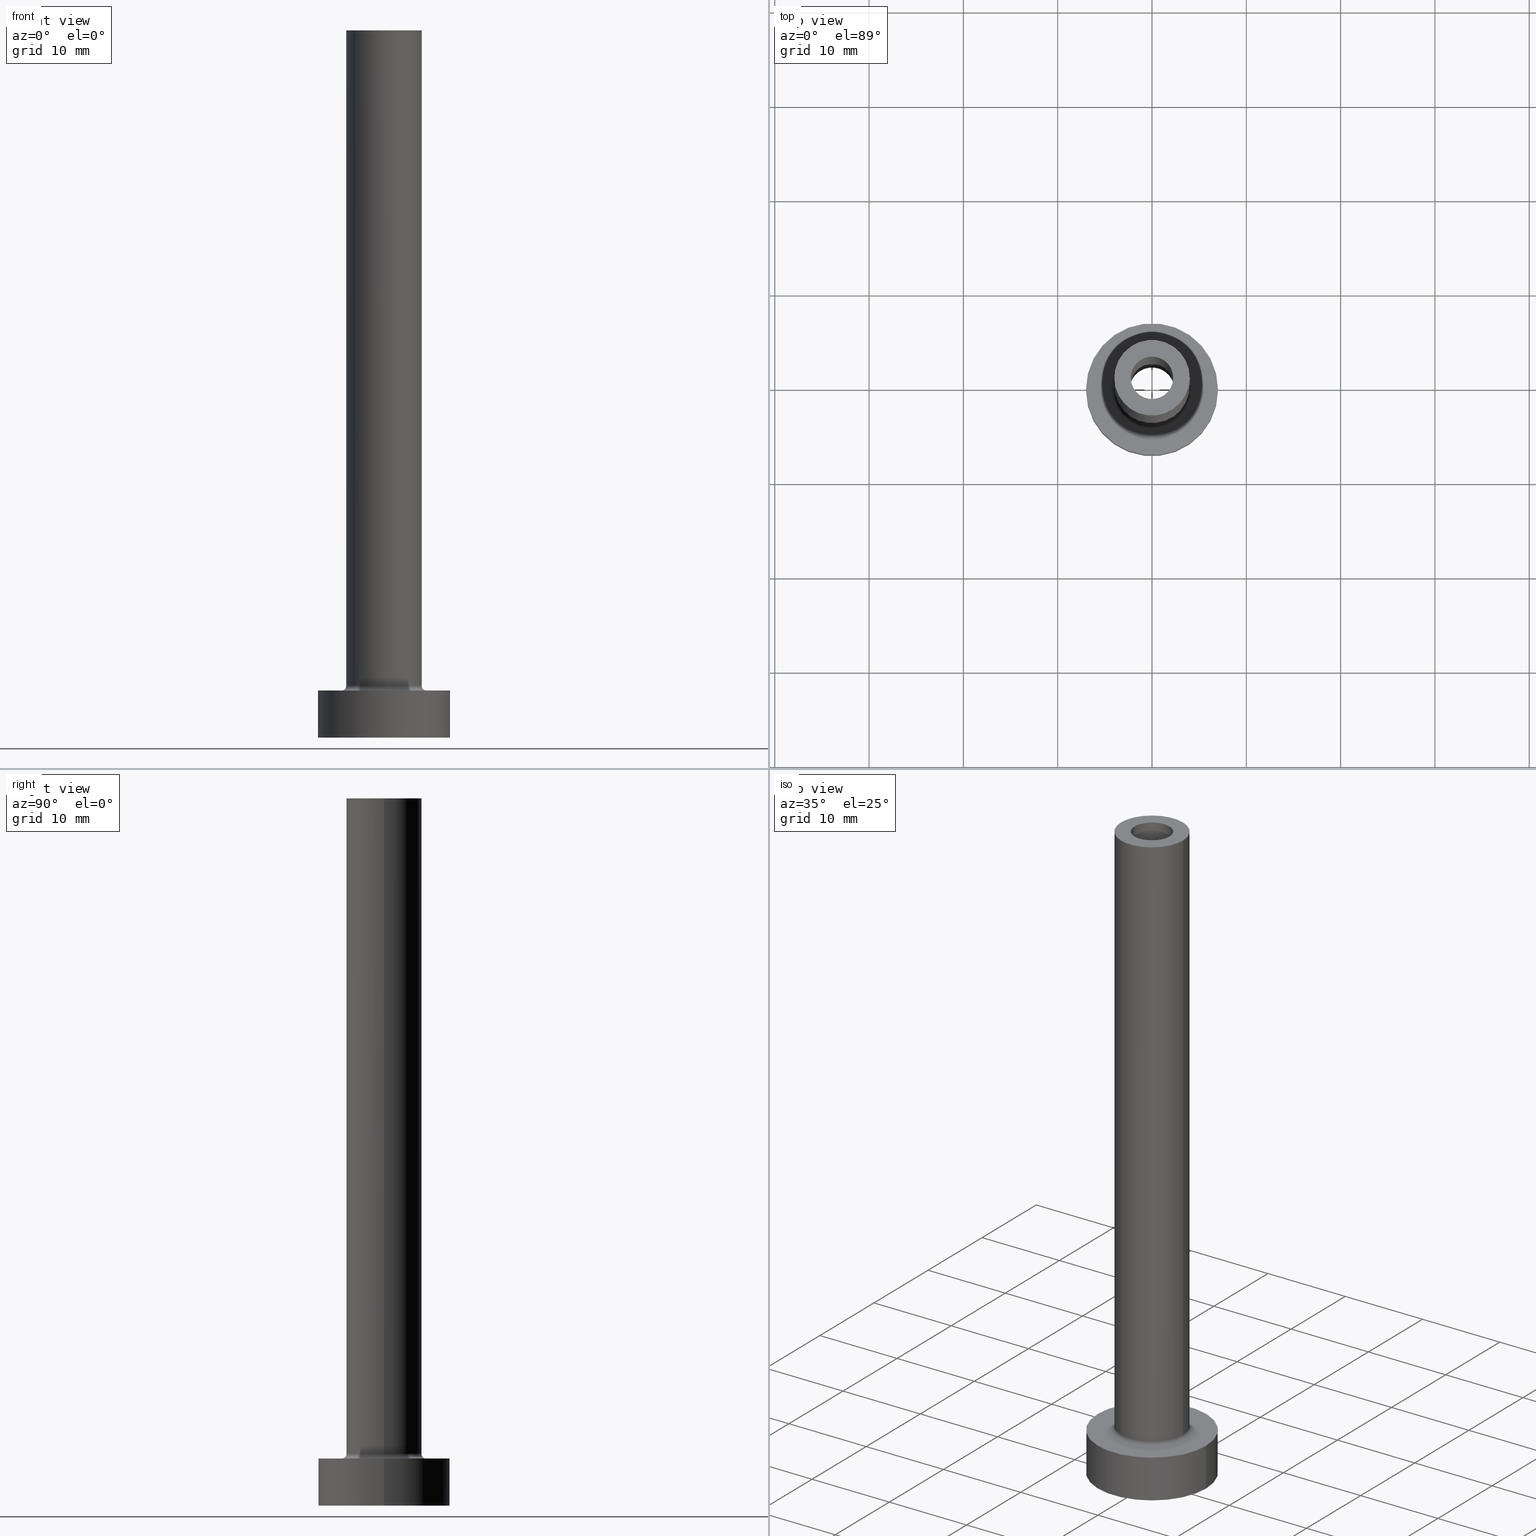
[diagram: canonical four-view strip — front | top / right | iso, engineering-drawing reading convention]
A machine part, canonical four-view strip (front | top / right | iso — engineering-drawing reading convention). The complete STEP part file that produces these views, byte-faithful:
ISO-10303-21;
HEADER;
FILE_DESCRIPTION (( 'STEP AP203' ),
    '1' );
FILE_NAME ('481a.STEP',
    '2023-02-13T11:06:10',
    ( '' ),
    ( '' ),
    'SwSTEP 2.0',
    'SolidWorks 2019',
    '' );
FILE_SCHEMA (( 'CONFIG_CONTROL_DESIGN' ));
ENDSEC;

DATA;
#1 = DIRECTION ( 'NONE',  ( 0.000000000000000000, 0.000000000000000000, 1.000000000000000000 ) ) ;
#2 = CARTESIAN_POINT ( 'NONE',  ( 0.000000000000000000, 0.000000000000000000, 30.00000000000001421 ) ) ;
#3 = EDGE_LOOP ( 'NONE', ( #32, #252 ) ) ;
#4 = CARTESIAN_POINT ( 'NONE',  ( 0.000000000000000000, 0.000000000000000000, 5.000000000000000000 ) ) ;
#5 = CARTESIAN_POINT ( 'NONE',  ( 0.000000000000000000, 0.000000000000000000, 5.500000000000005329 ) ) ;
#6 = CARTESIAN_POINT ( 'NONE',  ( 0.000000000000000000, 0.000000000000000000, 36.78822509939086416 ) ) ;
#7 = CARTESIAN_POINT ( 'NONE',  ( 0.000000000000000000, 0.000000000000000000, 30.00000000000001421 ) ) ;
#8 = DATE_AND_TIME ( #368, #217 ) ;
#9 = FACE_OUTER_BOUND ( 'NONE', #452, .T. ) ;
#10 = DATE_AND_TIME ( #343, #338 ) ;
#11 = CIRCLE ( 'NONE', #238, 2.399999999999999911 ) ;
#12 = CC_DESIGN_PERSON_AND_ORGANIZATION_ASSIGNMENT ( #118, #229, ( #267 ) ) ;
#13 = APPROVAL_STATUS ( 'not_yet_approved' ) ;
#14 = CARTESIAN_POINT ( 'NONE',  ( 0.000000000000000000, 0.000000000000000000, 75.00000000000001421 ) ) ;
#15 = EDGE_CURVE ( 'NONE', #193, #396, #221, .T. ) ;
#16 = CYLINDRICAL_SURFACE ( 'NONE', #253, 7.000000000000000000 ) ;
#17 = CARTESIAN_POINT ( 'NONE',  ( 0.000000000000000000, 0.000000000000000000, 75.00000000000001421 ) ) ;
#18 =( GEOMETRIC_REPRESENTATION_CONTEXT ( 3 ) GLOBAL_UNCERTAINTY_ASSIGNED_CONTEXT ( ( #72 ) ) GLOBAL_UNIT_ASSIGNED_CONTEXT ( ( #309, #367, #254 ) ) REPRESENTATION_CONTEXT ( 'NONE', 'WORKASPACE' ) );
#19 = ORIENTED_EDGE ( 'NONE', *, *, #23, .T. ) ;
#20 = ADVANCED_FACE ( 'NONE', ( #273 ), #236, .F. ) ;
#21 = AXIS2_PLACEMENT_3D ( 'NONE', #275, #96, #95 ) ;
#22 = AXIS2_PLACEMENT_3D ( 'NONE', #36, #147, #142 ) ;
#23 = EDGE_CURVE ( 'NONE', #365, #329, #90, .T. ) ;
#24 = ORIENTED_EDGE ( 'NONE', *, *, #232, .T. ) ;
#25 = DIRECTION ( 'NONE',  ( 1.000000000000000000, 0.000000000000000000, 0.000000000000000000 ) ) ;
#26 = ORIENTED_EDGE ( 'NONE', *, *, #243, .T. ) ;
#27 = CC_DESIGN_APPROVAL ( #94, ( #267 ) ) ;
#28 = LINE ( 'NONE', #74, #149 ) ;
#29 = CARTESIAN_POINT ( 'NONE',  ( 7.000000000000000000, 8.572527594031473190E-16, 0.000000000000000000 ) ) ;
#30 = CARTESIAN_POINT ( 'NONE',  ( 4.000000000000000000, 4.898587196589412829E-16, 5.500000000000005329 ) ) ;
#31 = ORIENTED_EDGE ( 'NONE', *, *, #342, .T. ) ;
#32 = ORIENTED_EDGE ( 'NONE', *, *, #373, .F. ) ;
#33 = APPROVAL_ROLE ( '' ) ;
#34 = CARTESIAN_POINT ( 'NONE',  ( 0.000000000000000000, 0.000000000000000000, 30.00000000000001421 ) ) ;
#35 = AXIS2_PLACEMENT_3D ( 'NONE', #175, #137, #245 ) ;
#36 = CARTESIAN_POINT ( 'NONE',  ( 0.000000000000000000, 0.000000000000000000, 5.000000000000000000 ) ) ;
#37 = ORIENTED_EDGE ( 'NONE', *, *, #383, .T. ) ;
#38 = DATE_TIME_ROLE ( 'classification_date' ) ;
#39 = VECTOR ( 'NONE', #239, 1000.000000000000000 ) ;
#40 = AXIS2_PLACEMENT_3D ( 'NONE', #17, #416, #374 ) ;
#41 = CARTESIAN_POINT ( 'NONE',  ( 0.000000000000000000, 0.000000000000000000, 75.00000000000001421 ) ) ;
#42 = APPROVAL_DATE_TIME ( #81, #135 ) ;
#43 = DIRECTION ( 'NONE',  ( 0.000000000000000000, 0.000000000000000000, 1.000000000000000000 ) ) ;
#44 = ORIENTED_EDGE ( 'NONE', *, *, #224, .T. ) ;
#45 = AXIS2_PLACEMENT_3D ( 'NONE', #285, #460, #435 ) ;
#46 = DIRECTION ( 'NONE',  ( 1.000000000000000000, 0.000000000000000000, 0.000000000000000000 ) ) ;
#47 = CYLINDRICAL_SURFACE ( 'NONE', #422, 4.000000000000000000 ) ;
#48 = DIRECTION ( 'NONE',  ( 0.000000000000000000, 0.000000000000000000, -1.000000000000000000 ) ) ;
#49 = VECTOR ( 'NONE', #334, 1000.000000000000000 ) ;
#50 = FACE_BOUND ( 'NONE', #3, .T. ) ;
#51 = DIRECTION ( 'NONE',  ( 1.000000000000000000, 0.000000000000000000, 0.000000000000000000 ) ) ;
#52 = EDGE_CURVE ( 'NONE', #349, #283, #314, .T. ) ;
#53 = CARTESIAN_POINT ( 'NONE',  ( 2.250000000000000000, 2.755455298081543792E-16, 30.00000000000001421 ) ) ;
#54 = CIRCLE ( 'NONE', #444, 2.250000000000000000 ) ;
#55 = EDGE_CURVE ( 'NONE', #349, #193, #138, .T. ) ;
#56 = DIRECTION ( 'NONE',  ( 1.000000000000000000, 0.000000000000000000, -0.000000000000000000 ) ) ;
#57 = ORIENTED_EDGE ( 'NONE', *, *, #284, .T. ) ;
#58 = CARTESIAN_POINT ( 'NONE',  ( -2.399999999999999911, 0.000000000000000000, 0.000000000000000000 ) ) ;
#59 = CC_DESIGN_PERSON_AND_ORGANIZATION_ASSIGNMENT ( #333, #304, ( #357 ) ) ;
#60 = AXIS2_PLACEMENT_3D ( 'NONE', #384, #392, #328 ) ;
#61 = EDGE_CURVE ( 'NONE', #449, #182, #206, .T. ) ;
#62 = FACE_OUTER_BOUND ( 'NONE', #355, .T. ) ;
#63 = ADVANCED_FACE ( 'NONE', ( #378 ), #47, .T. ) ;
#64 = AXIS2_PLACEMENT_3D ( 'NONE', #85, #167, #307 ) ;
#65 = CARTESIAN_POINT ( 'NONE',  ( 0.000000000000000000, 0.000000000000000000, 75.00000000000001421 ) ) ;
#66 = PRODUCT_DEFINITION_SHAPE ( 'NONE', 'NONE',  #267 ) ;
#67 = DIRECTION ( 'NONE',  ( 0.000000000000000000, 0.000000000000000000, -1.000000000000000000 ) ) ;
#68 = ORIENTED_EDGE ( 'NONE', *, *, #224, .F. ) ;
#69 = CC_DESIGN_APPROVAL ( #135, ( #357 ) ) ;
#70 = CYLINDRICAL_SURFACE ( 'NONE', #324, 4.000000000000000000 ) ;
#71 = ORIENTED_EDGE ( 'NONE', *, *, #197, .F. ) ;
#72 = UNCERTAINTY_MEASURE_WITH_UNIT (LENGTH_MEASURE( 1.000000000000000082E-05 ), #309, 'distance_accuracy_value', 'NONE');
#73 = EDGE_LOOP ( 'NONE', ( #325, #71, #442, #341 ) ) ;
#74 = CARTESIAN_POINT ( 'NONE',  ( -4.000000000000000000, 0.000000000000000000, 75.00000000000001421 ) ) ;
#75 = EDGE_LOOP ( 'NONE', ( #230, #173 ) ) ;
#76 = APPROVAL_STATUS ( 'not_yet_approved' ) ;
#77 = EDGE_CURVE ( 'NONE', #308, #406, #54, .T. ) ;
#78 = AXIS2_PLACEMENT_3D ( 'NONE', #296, #441, #437 ) ;
#79 = LINE ( 'NONE', #258, #346 ) ;
#80 = ORIENTED_EDGE ( 'NONE', *, *, #144, .F. ) ;
#81 = DATE_AND_TIME ( #162, #274 ) ;
#82 = DIRECTION ( 'NONE',  ( 1.000000000000000000, 0.000000000000000000, -0.000000000000000000 ) ) ;
#83 = ADVANCED_FACE ( 'NONE', ( #344 ), #16, .T. ) ;
#84 = MECHANICAL_CONTEXT ( 'NONE', #155, 'mechanical' ) ;
#85 = CARTESIAN_POINT ( 'NONE',  ( 0.000000000000000000, 0.000000000000000000, 30.00000000000001421 ) ) ;
#86 = CALENDAR_DATE ( 2023, 13, 2 ) ;
#87 = ADVANCED_BREP_SHAPE_REPRESENTATION ( '481a', ( #288, #108 ), #18 ) ;
#88 = APPROVAL_ROLE ( '' ) ;
#89 = TOROIDAL_SURFACE ( 'NONE', #204, 4.500000000000000888, 0.5000000000000000000 ) ;
#90 = LINE ( 'NONE', #376, #39 ) ;
#91 = ORIENTED_EDGE ( 'NONE', *, *, #124, .T. ) ;
#92 = DIRECTION ( 'NONE',  ( 0.000000000000000000, 0.000000000000000000, 1.000000000000000000 ) ) ;
#93 = AXIS2_PLACEMENT_3D ( 'NONE', #103, #218, #192 ) ;
#94 = APPROVAL ( #13, 'NEUR�EN�' ) ;
#95 = DIRECTION ( 'NONE',  ( 1.000000000000000000, 0.000000000000000000, 0.000000000000000000 ) ) ;
#96 = DIRECTION ( 'NONE',  ( 0.000000000000000000, 0.000000000000000000, 1.000000000000000000 ) ) ;
#97 = EDGE_CURVE ( 'NONE', #406, #308, #278, .T. ) ;
#98 = CARTESIAN_POINT ( 'NONE',  ( 7.000000000000000000, 8.572527594031473190E-16, 5.000000000000000000 ) ) ;
#99 = EDGE_LOOP ( 'NONE', ( #461, #68, #303, #255 ) ) ;
#100 = AXIS2_PLACEMENT_3D ( 'NONE', #5, #317, #214 ) ;
#101 = CIRCLE ( 'NONE', #93, 7.000000000000000000 ) ;
#102 = CARTESIAN_POINT ( 'NONE',  ( 2.250000000000000000, 2.755455298081543792E-16, 75.00000000000001421 ) ) ;
#103 = CARTESIAN_POINT ( 'NONE',  ( 0.000000000000000000, 0.000000000000000000, 0.000000000000000000 ) ) ;
#104 = ORIENTED_EDGE ( 'NONE', *, *, #165, .F. ) ;
#105 = EDGE_CURVE ( 'NONE', #436, #213, #387, .T. ) ;
#106 = FACE_BOUND ( 'NONE', #311, .T. ) ;
#107 = EDGE_LOOP ( 'NONE', ( #388, #80 ) ) ;
#108 = AXIS2_PLACEMENT_3D ( 'NONE', #293, #1, #335 ) ;
#109 = PLANE ( 'NONE',  #381 ) ;
#110 = ORIENTED_EDGE ( 'NONE', *, *, #136, .F. ) ;
#111 = COORDINATED_UNIVERSAL_TIME_OFFSET ( 1, 0, .AHEAD. ) ;
#112 = DIRECTION ( 'NONE',  ( -0.000000000000000000, -0.000000000000000000, -1.000000000000000000 ) ) ;
#113 = DATE_AND_TIME ( #434, #456 ) ;
#114 = ORIENTED_EDGE ( 'NONE', *, *, #97, .F. ) ;
#115 = ADVANCED_FACE ( 'NONE', ( #419, #62 ), #310, .T. ) ;
#116 = APPROVAL_STATUS ( 'not_yet_approved' ) ;
#117 = DIRECTION ( 'NONE',  ( 1.000000000000000000, 0.000000000000000000, 0.000000000000000000 ) ) ;
#118 = PERSON_AND_ORGANIZATION ( #199, #281 ) ;
#119 = CARTESIAN_POINT ( 'NONE',  ( -4.500000000000000888, 5.510910596163088569E-16, 5.000000000000002665 ) ) ;
#120 = VERTEX_POINT ( 'NONE', #241 ) ;
#121 = AXIS2_PLACEMENT_3D ( 'NONE', #353, #153, #25 ) ;
#122 = ORIENTED_EDGE ( 'NONE', *, *, #246, .T. ) ;
#123 = CARTESIAN_POINT ( 'NONE',  ( 4.000000000000000000, 4.898587196589412829E-16, 75.00000000000001421 ) ) ;
#124 = EDGE_CURVE ( 'NONE', #233, #143, #312, .T. ) ;
#125 = PERSON_AND_ORGANIZATION ( #199, #281 ) ;
#126 = EDGE_LOOP ( 'NONE', ( #104, #271 ) ) ;
#127 = COORDINATED_UNIVERSAL_TIME_OFFSET ( 1, 0, .AHEAD. ) ;
#128 = AXIS2_PLACEMENT_3D ( 'NONE', #250, #181, #363 ) ;
#129 = CC_DESIGN_DATE_AND_TIME_ASSIGNMENT ( #8, #38, ( #357 ) ) ;
#130 = TOROIDAL_SURFACE ( 'NONE', #121, 4.500000000000000888, 0.5000000000000000000 ) ;
#131 = DIRECTION ( 'NONE',  ( -1.000000000000000000, 0.000000000000000000, 0.000000000000000000 ) ) ;
#132 = ORIENTED_EDGE ( 'NONE', *, *, #77, .F. ) ;
#133 = DIRECTION ( 'NONE',  ( 1.000000000000000000, 0.000000000000000000, 0.000000000000000000 ) ) ;
#134 = CARTESIAN_POINT ( 'NONE',  ( 0.000000000000000000, 0.000000000000000000, 0.000000000000000000 ) ) ;
#135 = APPROVAL ( #76, 'NEUR�EN�' ) ;
#136 = EDGE_CURVE ( 'NONE', #182, #449, #414, .T. ) ;
#137 = DIRECTION ( 'NONE',  ( 0.000000000000000000, 0.000000000000000000, 1.000000000000000000 ) ) ;
#138 = CIRCLE ( 'NONE', #391, 4.000000000000000000 ) ;
#139 = DIRECTION ( 'NONE',  ( 1.000000000000000000, 0.000000000000000000, -0.000000000000000000 ) ) ;
#140 = CIRCLE ( 'NONE', #60, 7.000000000000000000 ) ;
#141 = CIRCLE ( 'NONE', #377, 4.500000000000000888 ) ;
#142 = DIRECTION ( 'NONE',  ( 1.000000000000000000, 0.000000000000000000, 0.000000000000000000 ) ) ;
#143 = VERTEX_POINT ( 'NONE', #350 ) ;
#144 = EDGE_CURVE ( 'NONE', #143, #233, #198, .T. ) ;
#145 = FACE_OUTER_BOUND ( 'NONE', #148, .T. ) ;
#146 = EDGE_LOOP ( 'NONE', ( #265, #453, #159, #458 ) ) ;
#147 = DIRECTION ( 'NONE',  ( -0.000000000000000000, -0.000000000000000000, -1.000000000000000000 ) ) ;
#148 = EDGE_LOOP ( 'NONE', ( #91, #219, #114, #259 ) ) ;
#149 = VECTOR ( 'NONE', #428, 1000.000000000000000 ) ;
#150 = CC_DESIGN_PERSON_AND_ORGANIZATION_ASSIGNMENT ( #260, #234, ( #211 ) ) ;
#151 = APPLICATION_PROTOCOL_DEFINITION ( 'international standard', 'config_control_design', 1994, #155 ) ;
#152 = DIRECTION ( 'NONE',  ( 0.000000000000000000, 0.000000000000000000, 1.000000000000000000 ) ) ;
#153 = DIRECTION ( 'NONE',  ( 0.000000000000000000, 0.000000000000000000, 1.000000000000000000 ) ) ;
#154 = ORIENTED_EDGE ( 'NONE', *, *, #205, .F. ) ;
#155 = APPLICATION_CONTEXT ( 'configuration controlled 3d designs of mechanical parts and assemblies' ) ;
#156 = DIRECTION ( 'NONE',  ( 0.000000000000000000, 0.000000000000000000, -1.000000000000000000 ) ) ;
#157 = PERSON_AND_ORGANIZATION ( #199, #281 ) ;
#158 = DIRECTION ( 'NONE',  ( 0.000000000000000000, 0.000000000000000000, 1.000000000000000000 ) ) ;
#159 = ORIENTED_EDGE ( 'NONE', *, *, #385, .F. ) ;
#160 = CARTESIAN_POINT ( 'NONE',  ( -2.250000000000000000, 0.000000000000000000, 30.00000000000001421 ) ) ;
#161 = DIRECTION ( 'NONE',  ( -0.000000000000000000, -0.000000000000000000, -1.000000000000000000 ) ) ;
#162 = CALENDAR_DATE ( 2023, 13, 2 ) ;
#163 = DIRECTION ( 'NONE',  ( 1.000000000000000000, 0.000000000000000000, 0.000000000000000000 ) ) ;
#164 = CIRCLE ( 'NONE', #168, 2.399999999999999911 ) ;
#165 = EDGE_CURVE ( 'NONE', #213, #362, #140, .T. ) ;
#166 = EDGE_LOOP ( 'NONE', ( #154, #244, #26, #399 ) ) ;
#167 = DIRECTION ( 'NONE',  ( 0.000000000000000000, 0.000000000000000000, 1.000000000000000000 ) ) ;
#168 = AXIS2_PLACEMENT_3D ( 'NONE', #34, #43, #185 ) ;
#169 = ADVANCED_FACE ( 'NONE', ( #389 ), #70, .T. ) ;
#170 = EDGE_LOOP ( 'NONE', ( #321, #180, #207, #132 ) ) ;
#171 = ORIENTED_EDGE ( 'NONE', *, *, #136, .T. ) ;
#172 = CARTESIAN_POINT ( 'NONE',  ( 0.000000000000000000, 0.000000000000000000, 5.000000000000000000 ) ) ;
#173 = ORIENTED_EDGE ( 'NONE', *, *, #246, .F. ) ;
#174 = AXIS2_PLACEMENT_3D ( 'NONE', #348, #450, #133 ) ;
#175 = CARTESIAN_POINT ( 'NONE',  ( 0.000000000000000000, 0.000000000000000000, 75.00000000000001421 ) ) ;
#176 = PRODUCT ( '481a', '481a', '', ( #84 ) ) ;
#177 = AXIS2_PLACEMENT_3D ( 'NONE', #289, #358, #403 ) ;
#178 = FACE_OUTER_BOUND ( 'NONE', #99, .T. ) ;
#179 = ORIENTED_EDGE ( 'NONE', *, *, #77, .T. ) ;
#180 = ORIENTED_EDGE ( 'NONE', *, *, #144, .T. ) ;
#181 = DIRECTION ( 'NONE',  ( 0.000000000000000000, 0.000000000000000000, 1.000000000000000000 ) ) ;
#182 = VERTEX_POINT ( 'NONE', #359 ) ;
#183 = CARTESIAN_POINT ( 'NONE',  ( 0.000000000000000000, 0.000000000000000000, 75.00000000000001421 ) ) ;
#184 = VERTEX_POINT ( 'NONE', #186 ) ;
#185 = DIRECTION ( 'NONE',  ( 1.000000000000000000, 0.000000000000000000, 0.000000000000000000 ) ) ;
#186 = CARTESIAN_POINT ( 'NONE',  ( 2.399999999999999911, 2.939152317953647106E-16, 0.000000000000000000 ) ) ;
#187 = EDGE_LOOP ( 'NONE', ( #427, #110, #240, #440 ) ) ;
#188 = DIRECTION ( 'NONE',  ( 0.000000000000000000, 0.000000000000000000, -1.000000000000000000 ) ) ;
#189 = VERTEX_POINT ( 'NONE', #426 ) ;
#190 = CIRCLE ( 'NONE', #100, 4.000000000000000000 ) ;
#191 = VECTOR ( 'NONE', #112, 1000.000000000000000 ) ;
#192 = DIRECTION ( 'NONE',  ( 1.000000000000000000, 0.000000000000000000, 0.000000000000000000 ) ) ;
#193 = VERTEX_POINT ( 'NONE', #30 ) ;
#194 = ORIENTED_EDGE ( 'NONE', *, *, #339, .T. ) ;
#195 = FACE_OUTER_BOUND ( 'NONE', #215, .T. ) ;
#196 = DIRECTION ( 'NONE',  ( 1.224646799147353207E-16, 1.000000000000000000, -0.000000000000000000 ) ) ;
#197 = EDGE_CURVE ( 'NONE', #436, #189, #280, .T. ) ;
#198 = CIRCLE ( 'NONE', #35, 2.250000000000000000 ) ;
#199 = PERSON ( 'NEUR�EN�', 'NEUR�EN�', 'NEUR�EN�', ('NEUR�EN�'), ('NEUR�EN�'), ('NEUR�EN�') ) ;
#200 = CARTESIAN_POINT ( 'NONE',  ( 0.000000000000000000, 0.000000000000000000, 5.500000000000005329 ) ) ;
#201 = DIRECTION ( 'NONE',  ( 0.000000000000000000, 0.000000000000000000, 1.000000000000000000 ) ) ;
#202 = DIRECTION ( 'NONE',  ( 0.000000000000000000, 0.000000000000000000, 1.000000000000000000 ) ) ;
#203 = CC_DESIGN_PERSON_AND_ORGANIZATION_ASSIGNMENT ( #268, #235, ( #176 ) ) ;
#204 = AXIS2_PLACEMENT_3D ( 'NONE', #380, #415, #51 ) ;
#205 = EDGE_CURVE ( 'NONE', #189, #436, #356, .T. ) ;
#206 = CIRCLE ( 'NONE', #40, 4.000000000000000000 ) ;
#207 = ORIENTED_EDGE ( 'NONE', *, *, #360, .T. ) ;
#208 = DIRECTION ( 'NONE',  ( -0.000000000000000000, -0.000000000000000000, -1.000000000000000000 ) ) ;
#209 = ORIENTED_EDGE ( 'NONE', *, *, #385, .T. ) ;
#210 = AXIS2_PLACEMENT_3D ( 'NONE', #172, #92, #139 ) ;
#211 = PRODUCT_DEFINITION_FORMATION_WITH_SPECIFIED_SOURCE ( 'LIBOVOLN�', '', #176, .NOT_KNOWN. ) ;
#212 = DIRECTION ( 'NONE',  ( -0.000000000000000000, -0.000000000000000000, -1.000000000000000000 ) ) ;
#213 = VERTEX_POINT ( 'NONE', #425 ) ;
#214 = DIRECTION ( 'NONE',  ( 1.000000000000000000, 0.000000000000000000, 0.000000000000000000 ) ) ;
#215 = EDGE_LOOP ( 'NONE', ( #457, #122, #19, #448 ) ) ;
#216 = CYLINDRICAL_SURFACE ( 'NONE', #177, 7.000000000000000000 ) ;
#217 = LOCAL_TIME ( 12, 6, 10.00000000000000000, #256 ) ;
#218 = DIRECTION ( 'NONE',  ( 0.000000000000000000, 0.000000000000000000, 1.000000000000000000 ) ) ;
#219 = ORIENTED_EDGE ( 'NONE', *, *, #249, .T. ) ;
#220 = ADVANCED_FACE ( 'NONE', ( #145 ), #398, .F. ) ;
#221 = CIRCLE ( 'NONE', #320, 0.5000000000000004441 ) ;
#222 = DIRECTION ( 'NONE',  ( -0.000000000000000000, -0.000000000000000000, -1.000000000000000000 ) ) ;
#223 = CARTESIAN_POINT ( 'NONE',  ( -2.250000000000000000, 0.000000000000000000, 75.00000000000001421 ) ) ;
#224 = EDGE_CURVE ( 'NONE', #193, #349, #190, .T. ) ;
#225 = DIRECTION ( 'NONE',  ( -0.000000000000000000, -0.000000000000000000, -1.000000000000000000 ) ) ;
#226 = DIRECTION ( 'NONE',  ( -1.000000000000000000, 0.000000000000000000, 0.000000000000000000 ) ) ;
#227 = DESIGN_CONTEXT ( 'detailed design', #430, 'design' ) ;
#228 = EDGE_LOOP ( 'NONE', ( #294, #194, #44, #413 ) ) ;
#229 = PERSON_AND_ORGANIZATION_ROLE ( 'creator' ) ;
#230 = ORIENTED_EDGE ( 'NONE', *, *, #383, .F. ) ;
#231 = FACE_OUTER_BOUND ( 'NONE', #146, .T. ) ;
#232 = EDGE_CURVE ( 'NONE', #283, #396, #364, .T. ) ;
#233 = VERTEX_POINT ( 'NONE', #223 ) ;
#234 = PERSON_AND_ORGANIZATION_ROLE ( 'creator' ) ;
#235 = PERSON_AND_ORGANIZATION_ROLE ( 'design_owner' ) ;
#236 = CYLINDRICAL_SURFACE ( 'NONE', #330, 2.250000000000000000 ) ;
#237 = VECTOR ( 'NONE', #208, 1000.000000000000000 ) ;
#238 = AXIS2_PLACEMENT_3D ( 'NONE', #411, #222, #372 ) ;
#239 = DIRECTION ( 'NONE',  ( 0.000000000000000000, 0.000000000000000000, -1.000000000000000000 ) ) ;
#240 = ORIENTED_EDGE ( 'NONE', *, *, #277, .T. ) ;
#241 = CARTESIAN_POINT ( 'NONE',  ( 2.399999999999999911, 2.939152317953647106E-16, 30.00000000000001421 ) ) ;
#242 = DIRECTION ( 'NONE',  ( 0.000000000000000000, 0.000000000000000000, 1.000000000000000000 ) ) ;
#243 = EDGE_CURVE ( 'NONE', #362, #213, #101, .T. ) ;
#244 = ORIENTED_EDGE ( 'NONE', *, *, #298, .T. ) ;
#245 = DIRECTION ( 'NONE',  ( 1.000000000000000000, 0.000000000000000000, 0.000000000000000000 ) ) ;
#246 = EDGE_CURVE ( 'NONE', #120, #365, #316, .T. ) ;
#247 = FACE_OUTER_BOUND ( 'NONE', #73, .T. ) ;
#248 = LINE ( 'NONE', #102, #455 ) ;
#249 = EDGE_CURVE ( 'NONE', #143, #308, #248, .T. ) ;
#250 = CARTESIAN_POINT ( 'NONE',  ( 0.000000000000000000, 0.000000000000000000, 5.000000000000000000 ) ) ;
#251 = ORIENTED_EDGE ( 'NONE', *, *, #205, .T. ) ;
#252 = ORIENTED_EDGE ( 'NONE', *, *, #342, .F. ) ;
#253 = AXIS2_PLACEMENT_3D ( 'NONE', #269, #161, #412 ) ;
#254 =( NAMED_UNIT ( * ) SI_UNIT ( $, .STERADIAN. ) SOLID_ANGLE_UNIT ( ) );
#255 = ORIENTED_EDGE ( 'NONE', *, *, #232, .F. ) ;
#256 = COORDINATED_UNIVERSAL_TIME_OFFSET ( 1, 0, .AHEAD. ) ;
#257 = CARTESIAN_POINT ( 'NONE',  ( -7.000000000000000000, 0.000000000000000000, 5.000000000000000000 ) ) ;
#258 = CARTESIAN_POINT ( 'NONE',  ( 2.399999999999999911, 2.939152317953647106E-16, 36.78822509939086416 ) ) ;
#259 = ORIENTED_EDGE ( 'NONE', *, *, #360, .F. ) ;
#260 = PERSON_AND_ORGANIZATION ( #199, #281 ) ;
#261 = CIRCLE ( 'NONE', #352, 2.399999999999999911 ) ;
#262 = APPROVAL_PERSON_ORGANIZATION ( #125, #292, #371 ) ;
#263 = ADVANCED_FACE ( 'NONE', ( #247 ), #216, .T. ) ;
#264 = CARTESIAN_POINT ( 'NONE',  ( 0.000000000000000000, 0.000000000000000000, 75.00000000000001421 ) ) ;
#265 = ORIENTED_EDGE ( 'NONE', *, *, #55, .F. ) ;
#266 = COORDINATED_UNIVERSAL_TIME_OFFSET ( 1, 0, .AHEAD. ) ;
#267 = PRODUCT_DEFINITION ( 'NEZN�M�', '', #211, #227 ) ;
#268 = PERSON_AND_ORGANIZATION ( #199, #281 ) ;
#269 = CARTESIAN_POINT ( 'NONE',  ( 0.000000000000000000, 0.000000000000000000, 5.000000000000000000 ) ) ;
#270 = CC_DESIGN_PERSON_AND_ORGANIZATION_ASSIGNMENT ( #408, #337, ( #211 ) ) ;
#271 = ORIENTED_EDGE ( 'NONE', *, *, #243, .F. ) ;
#272 = APPROVAL_PERSON_ORGANIZATION ( #404, #135, #33 ) ;
#273 = FACE_OUTER_BOUND ( 'NONE', #170, .T. ) ;
#274 = LOCAL_TIME ( 12, 6, 10.00000000000000000, #111 ) ;
#275 = CARTESIAN_POINT ( 'NONE',  ( 0.000000000000000000, 0.000000000000000000, 75.00000000000001421 ) ) ;
#276 = ORIENTED_EDGE ( 'NONE', *, *, #23, .F. ) ;
#277 = EDGE_CURVE ( 'NONE', #182, #349, #28, .T. ) ;
#278 = CIRCLE ( 'NONE', #64, 2.250000000000000000 ) ;
#279 = ADVANCED_FACE ( 'NONE', ( #106, #433 ), #109, .F. ) ;
#280 = CIRCLE ( 'NONE', #45, 7.000000000000000000 ) ;
#281 = ORGANIZATION ( 'NEUR�EN�', 'NEUR�EN�', '' ) ;
#282 = CARTESIAN_POINT ( 'NONE',  ( 4.000000000000000000, 4.898587196589412829E-16, 75.00000000000001421 ) ) ;
#283 = VERTEX_POINT ( 'NONE', #119 ) ;
#284 = EDGE_CURVE ( 'NONE', #120, #184, #79, .T. ) ;
#285 = CARTESIAN_POINT ( 'NONE',  ( 0.000000000000000000, 0.000000000000000000, 5.000000000000000000 ) ) ;
#286 = EDGE_LOOP ( 'NONE', ( #209, #24 ) ) ;
#288 = MANIFOLD_SOLID_BREP ( 'Odebrat vysunut�m4', #390 ) ;
#287 = CARTESIAN_POINT ( 'NONE',  ( -2.399999999999999911, 0.000000000000000000, 30.00000000000001421 ) ) ;
#289 = CARTESIAN_POINT ( 'NONE',  ( 0.000000000000000000, 0.000000000000000000, 5.000000000000000000 ) ) ;
#290 = ORIENTED_EDGE ( 'NONE', *, *, #97, .T. ) ;
#291 = DIRECTION ( 'NONE',  ( -0.000000000000000000, -0.000000000000000000, -1.000000000000000000 ) ) ;
#292 = APPROVAL ( #116, 'NEUR�EN�' ) ;
#293 = CARTESIAN_POINT ( 'NONE',  ( 0.000000000000000000, 0.000000000000000000, 0.000000000000000000 ) ) ;
#294 = ORIENTED_EDGE ( 'NONE', *, *, #61, .F. ) ;
#295 = APPROVAL_DATE_TIME ( #375, #292 ) ;
#296 = CARTESIAN_POINT ( 'NONE',  ( 0.000000000000000000, 0.000000000000000000, 36.78822509939086416 ) ) ;
#297 = ORIENTED_EDGE ( 'NONE', *, *, #61, .T. ) ;
#298 = EDGE_CURVE ( 'NONE', #189, #362, #351, .T. ) ;
#299 = FACE_OUTER_BOUND ( 'NONE', #429, .T. ) ;
#300 = DIRECTION ( 'NONE',  ( -1.000000000000000000, 1.224646799147351482E-16, 0.000000000000000000 ) ) ;
#301 = CC_DESIGN_APPROVAL ( #292, ( #211 ) ) ;
#302 = CARTESIAN_POINT ( 'NONE',  ( 4.500000000000000888, 0.000000000000000000, 5.000000000000002665 ) ) ;
#303 = ORIENTED_EDGE ( 'NONE', *, *, #15, .T. ) ;
#304 = PERSON_AND_ORGANIZATION_ROLE ( 'classification_officer' ) ;
#305 = ADVANCED_FACE ( 'NONE', ( #50, #354 ), #347, .F. ) ;
#306 = CARTESIAN_POINT ( 'NONE',  ( 4.500000000000000888, 0.000000000000000000, 5.500000000000005329 ) ) ;
#307 = DIRECTION ( 'NONE',  ( 1.000000000000000000, 0.000000000000000000, 0.000000000000000000 ) ) ;
#308 = VERTEX_POINT ( 'NONE', #53 ) ;
#309 =( LENGTH_UNIT ( ) NAMED_UNIT ( * ) SI_UNIT ( .MILLI., .METRE. ) );
#310 = PLANE ( 'NONE',  #210 ) ;
#311 = EDGE_LOOP ( 'NONE', ( #290, #179 ) ) ;
#312 = CIRCLE ( 'NONE', #174, 2.250000000000000000 ) ;
#313 = ADVANCED_FACE ( 'NONE', ( #178 ), #130, .F. ) ;
#314 = CIRCLE ( 'NONE', #417, 0.5000000000000004441 ) ;
#315 = LINE ( 'NONE', #282, #191 ) ;
#316 = CIRCLE ( 'NONE', #326, 2.399999999999999911 ) ;
#317 = DIRECTION ( 'NONE',  ( 0.000000000000000000, 0.000000000000000000, 1.000000000000000000 ) ) ;
#318 = CC_DESIGN_DATE_AND_TIME_ASSIGNMENT ( #10, #394, ( #267 ) ) ;
#319 = DIRECTION ( 'NONE',  ( -1.000000000000000000, 0.000000000000000000, 0.000000000000000000 ) ) ;
#320 = AXIS2_PLACEMENT_3D ( 'NONE', #306, #379, #48 ) ;
#321 = ORIENTED_EDGE ( 'NONE', *, *, #249, .F. ) ;
#322 = DIRECTION ( 'NONE',  ( -0.000000000000000000, -0.000000000000000000, -1.000000000000000000 ) ) ;
#323 = CARTESIAN_POINT ( 'NONE',  ( 0.000000000000000000, 0.000000000000000000, 0.000000000000000000 ) ) ;
#324 = AXIS2_PLACEMENT_3D ( 'NONE', #65, #322, #226 ) ;
#325 = ORIENTED_EDGE ( 'NONE', *, *, #298, .F. ) ;
#326 = AXIS2_PLACEMENT_3D ( 'NONE', #361, #158, #395 ) ;
#327 = CYLINDRICAL_SURFACE ( 'NONE', #78, 2.399999999999999911 ) ;
#328 = DIRECTION ( 'NONE',  ( 1.000000000000000000, 0.000000000000000000, 0.000000000000000000 ) ) ;
#329 = VERTEX_POINT ( 'NONE', #58 ) ;
#330 = AXIS2_PLACEMENT_3D ( 'NONE', #14, #445, #131 ) ;
#331 = CARTESIAN_POINT ( 'NONE',  ( -2.250000000000000000, 0.000000000000000000, 75.00000000000001421 ) ) ;
#332 = DIRECTION ( 'NONE',  ( -1.000000000000000000, 0.000000000000000000, 0.000000000000000000 ) ) ;
#333 = PERSON_AND_ORGANIZATION ( #199, #281 ) ;
#334 = DIRECTION ( 'NONE',  ( 0.000000000000000000, 0.000000000000000000, -1.000000000000000000 ) ) ;
#335 = DIRECTION ( 'NONE',  ( 1.000000000000000000, 0.000000000000000000, 0.000000000000000000 ) ) ;
#336 = DIRECTION ( 'NONE',  ( -0.000000000000000000, -0.000000000000000000, -1.000000000000000000 ) ) ;
#337 = PERSON_AND_ORGANIZATION_ROLE ( 'design_supplier' ) ;
#338 = LOCAL_TIME ( 12, 6, 10.00000000000000000, #127 ) ;
#339 = EDGE_CURVE ( 'NONE', #449, #193, #315, .T. ) ;
#340 = APPLICATION_PROTOCOL_DEFINITION ( 'international standard', 'config_control_design', 1994, #430 ) ;
#341 = ORIENTED_EDGE ( 'NONE', *, *, #165, .T. ) ;
#342 = EDGE_CURVE ( 'NONE', #184, #329, #261, .T. ) ;
#343 = CALENDAR_DATE ( 2023, 13, 2 ) ;
#344 = FACE_OUTER_BOUND ( 'NONE', #166, .T. ) ;
#345 = DIRECTION ( 'NONE',  ( 1.000000000000000000, 0.000000000000000000, 0.000000000000000000 ) ) ;
#346 = VECTOR ( 'NONE', #423, 1000.000000000000000 ) ;
#347 = PLANE ( 'NONE',  #451 ) ;
#348 = CARTESIAN_POINT ( 'NONE',  ( 0.000000000000000000, 0.000000000000000000, 75.00000000000001421 ) ) ;
#349 = VERTEX_POINT ( 'NONE', #401 ) ;
#350 = CARTESIAN_POINT ( 'NONE',  ( 2.250000000000000000, 2.755455298081543792E-16, 75.00000000000001421 ) ) ;
#351 = LINE ( 'NONE', #98, #432 ) ;
#352 = AXIS2_PLACEMENT_3D ( 'NONE', #323, #225, #117 ) ;
#353 = CARTESIAN_POINT ( 'NONE',  ( 0.000000000000000000, 0.000000000000000000, 5.500000000000005329 ) ) ;
#354 = FACE_OUTER_BOUND ( 'NONE', #126, .T. ) ;
#355 = EDGE_LOOP ( 'NONE', ( #393, #251 ) ) ;
#356 = CIRCLE ( 'NONE', #128, 7.000000000000000000 ) ;
#357 = SECURITY_CLASSIFICATION ( '', '', #443 ) ;
#358 = DIRECTION ( 'NONE',  ( -0.000000000000000000, -0.000000000000000000, -1.000000000000000000 ) ) ;
#359 = CARTESIAN_POINT ( 'NONE',  ( -4.000000000000000000, 0.000000000000000000, 75.00000000000001421 ) ) ;
#360 = EDGE_CURVE ( 'NONE', #233, #406, #459, .T. ) ;
#361 = CARTESIAN_POINT ( 'NONE',  ( 0.000000000000000000, 0.000000000000000000, 30.00000000000001421 ) ) ;
#362 = VERTEX_POINT ( 'NONE', #29 ) ;
#363 = DIRECTION ( 'NONE',  ( 1.000000000000000000, 0.000000000000000000, 0.000000000000000000 ) ) ;
#364 = CIRCLE ( 'NONE', #22, 4.500000000000000888 ) ;
#365 = VERTEX_POINT ( 'NONE', #287 ) ;
#366 = AXIS2_PLACEMENT_3D ( 'NONE', #6, #156, #431 ) ;
#367 =( NAMED_UNIT ( * ) PLANE_ANGLE_UNIT ( ) SI_UNIT ( $, .RADIAN. ) );
#368 = CALENDAR_DATE ( 2023, 13, 2 ) ;
#369 = ADVANCED_FACE ( 'NONE', ( #9 ), #397, .F. ) ;
#370 = DIRECTION ( 'NONE',  ( 1.000000000000000000, 0.000000000000000000, -0.000000000000000000 ) ) ;
#371 = APPROVAL_ROLE ( '' ) ;
#372 = DIRECTION ( 'NONE',  ( 1.000000000000000000, 0.000000000000000000, 0.000000000000000000 ) ) ;
#373 = EDGE_CURVE ( 'NONE', #329, #184, #11, .T. ) ;
#374 = DIRECTION ( 'NONE',  ( 1.000000000000000000, 0.000000000000000000, 0.000000000000000000 ) ) ;
#375 = DATE_AND_TIME ( #86, #420 ) ;
#376 = CARTESIAN_POINT ( 'NONE',  ( -2.399999999999999911, 0.000000000000000000, 36.78822509939086416 ) ) ;
#377 = AXIS2_PLACEMENT_3D ( 'NONE', #4, #291, #163 ) ;
#378 = FACE_OUTER_BOUND ( 'NONE', #187, .T. ) ;
#379 = DIRECTION ( 'NONE',  ( 0.000000000000000000, -1.000000000000000000, 0.000000000000000000 ) ) ;
#380 = CARTESIAN_POINT ( 'NONE',  ( 0.000000000000000000, 0.000000000000000000, 5.500000000000005329 ) ) ;
#381 = AXIS2_PLACEMENT_3D ( 'NONE', #2, #152, #370 ) ;
#382 = CARTESIAN_POINT ( 'NONE',  ( -7.000000000000000000, 0.000000000000000000, 5.000000000000000000 ) ) ;
#383 = EDGE_CURVE ( 'NONE', #365, #120, #164, .T. ) ;
#384 = CARTESIAN_POINT ( 'NONE',  ( 0.000000000000000000, 0.000000000000000000, 0.000000000000000000 ) ) ;
#385 = EDGE_CURVE ( 'NONE', #396, #283, #141, .T. ) ;
#386 = CC_DESIGN_SECURITY_CLASSIFICATION ( #357, ( #211 ) ) ;
#387 = LINE ( 'NONE', #382, #237 ) ;
#388 = ORIENTED_EDGE ( 'NONE', *, *, #124, .F. ) ;
#389 = FACE_OUTER_BOUND ( 'NONE', #228, .T. ) ;
#390 = CLOSED_SHELL ( 'NONE', ( #220, #369, #454, #169, #83, #263, #115, #305, #63, #446, #313, #421, #279, #20 ) ) ;
#391 = AXIS2_PLACEMENT_3D ( 'NONE', #200, #202, #345 ) ;
#392 = DIRECTION ( 'NONE',  ( 0.000000000000000000, 0.000000000000000000, 1.000000000000000000 ) ) ;
#393 = ORIENTED_EDGE ( 'NONE', *, *, #197, .T. ) ;
#394 = DATE_TIME_ROLE ( 'creation_date' ) ;
#395 = DIRECTION ( 'NONE',  ( 1.000000000000000000, 0.000000000000000000, 0.000000000000000000 ) ) ;
#396 = VERTEX_POINT ( 'NONE', #302 ) ;
#397 = CYLINDRICAL_SURFACE ( 'NONE', #366, 2.399999999999999911 ) ;
#398 = CYLINDRICAL_SURFACE ( 'NONE', #447, 2.250000000000000000 ) ;
#399 = ORIENTED_EDGE ( 'NONE', *, *, #105, .F. ) ;
#400 = SHAPE_DEFINITION_REPRESENTATION ( #66, #87 ) ;
#401 = CARTESIAN_POINT ( 'NONE',  ( -4.000000000000000000, 0.000000000000000000, 5.500000000000005329 ) ) ;
#402 = APPROVAL_DATE_TIME ( #113, #94 ) ;
#403 = DIRECTION ( 'NONE',  ( -1.000000000000000000, 0.000000000000000000, 0.000000000000000000 ) ) ;
#404 = PERSON_AND_ORGANIZATION ( #199, #281 ) ;
#405 = FACE_BOUND ( 'NONE', #107, .T. ) ;
#406 = VERTEX_POINT ( 'NONE', #160 ) ;
#407 = APPROVAL_PERSON_ORGANIZATION ( #157, #94, #88 ) ;
#408 = PERSON_AND_ORGANIZATION ( #199, #281 ) ;
#409 = PRODUCT_RELATED_PRODUCT_CATEGORY ( 'detail', '', ( #176 ) ) ;
#410 = DIRECTION ( 'NONE',  ( 0.000000000000000000, 0.000000000000000000, 1.000000000000000000 ) ) ;
#411 = CARTESIAN_POINT ( 'NONE',  ( 0.000000000000000000, 0.000000000000000000, 0.000000000000000000 ) ) ;
#412 = DIRECTION ( 'NONE',  ( -1.000000000000000000, 0.000000000000000000, 0.000000000000000000 ) ) ;
#413 = ORIENTED_EDGE ( 'NONE', *, *, #277, .F. ) ;
#414 = CIRCLE ( 'NONE', #21, 4.000000000000000000 ) ;
#415 = DIRECTION ( 'NONE',  ( 0.000000000000000000, 0.000000000000000000, 1.000000000000000000 ) ) ;
#416 = DIRECTION ( 'NONE',  ( 0.000000000000000000, 0.000000000000000000, 1.000000000000000000 ) ) ;
#417 = AXIS2_PLACEMENT_3D ( 'NONE', #418, #196, #300 ) ;
#418 = CARTESIAN_POINT ( 'NONE',  ( -4.500000000000000888, 5.510910596163089556E-16, 5.500000000000005329 ) ) ;
#419 = FACE_BOUND ( 'NONE', #286, .T. ) ;
#420 = LOCAL_TIME ( 12, 6, 10.00000000000000000, #266 ) ;
#421 = ADVANCED_FACE ( 'NONE', ( #195 ), #327, .F. ) ;
#422 = AXIS2_PLACEMENT_3D ( 'NONE', #41, #336, #332 ) ;
#423 = DIRECTION ( 'NONE',  ( 0.000000000000000000, 0.000000000000000000, -1.000000000000000000 ) ) ;
#424 = AXIS2_PLACEMENT_3D ( 'NONE', #264, #410, #82 ) ;
#425 = CARTESIAN_POINT ( 'NONE',  ( -7.000000000000000000, 0.000000000000000000, 0.000000000000000000 ) ) ;
#426 = CARTESIAN_POINT ( 'NONE',  ( 7.000000000000000000, 8.572527594031473190E-16, 5.000000000000000000 ) ) ;
#427 = ORIENTED_EDGE ( 'NONE', *, *, #339, .F. ) ;
#428 = DIRECTION ( 'NONE',  ( -0.000000000000000000, -0.000000000000000000, -1.000000000000000000 ) ) ;
#429 = EDGE_LOOP ( 'NONE', ( #171, #297 ) ) ;
#430 = APPLICATION_CONTEXT ( 'configuration controlled 3d designs of mechanical parts and assemblies' ) ;
#431 = DIRECTION ( 'NONE',  ( -1.000000000000000000, 0.000000000000000000, 0.000000000000000000 ) ) ;
#432 = VECTOR ( 'NONE', #212, 1000.000000000000000 ) ;
#433 = FACE_OUTER_BOUND ( 'NONE', #75, .T. ) ;
#434 = CALENDAR_DATE ( 2023, 13, 2 ) ;
#435 = DIRECTION ( 'NONE',  ( 1.000000000000000000, 0.000000000000000000, 0.000000000000000000 ) ) ;
#436 = VERTEX_POINT ( 'NONE', #257 ) ;
#437 = DIRECTION ( 'NONE',  ( -1.000000000000000000, 0.000000000000000000, 0.000000000000000000 ) ) ;
#438 = COORDINATED_UNIVERSAL_TIME_OFFSET ( 1, 0, .AHEAD. ) ;
#439 = PLANE ( 'NONE',  #424 ) ;
#440 = ORIENTED_EDGE ( 'NONE', *, *, #55, .T. ) ;
#441 = DIRECTION ( 'NONE',  ( 0.000000000000000000, 0.000000000000000000, -1.000000000000000000 ) ) ;
#442 = ORIENTED_EDGE ( 'NONE', *, *, #105, .T. ) ;
#443 = SECURITY_CLASSIFICATION_LEVEL ( 'unclassified' ) ;
#444 = AXIS2_PLACEMENT_3D ( 'NONE', #7, #201, #46 ) ;
#445 = DIRECTION ( 'NONE',  ( 0.000000000000000000, 0.000000000000000000, -1.000000000000000000 ) ) ;
#446 = ADVANCED_FACE ( 'NONE', ( #405, #299 ), #439, .T. ) ;
#447 = AXIS2_PLACEMENT_3D ( 'NONE', #183, #188, #319 ) ;
#448 = ORIENTED_EDGE ( 'NONE', *, *, #373, .T. ) ;
#449 = VERTEX_POINT ( 'NONE', #123 ) ;
#450 = DIRECTION ( 'NONE',  ( 0.000000000000000000, 0.000000000000000000, 1.000000000000000000 ) ) ;
#451 = AXIS2_PLACEMENT_3D ( 'NONE', #134, #242, #56 ) ;
#452 = EDGE_LOOP ( 'NONE', ( #37, #57, #31, #276 ) ) ;
#453 = ORIENTED_EDGE ( 'NONE', *, *, #52, .T. ) ;
#454 = ADVANCED_FACE ( 'NONE', ( #231 ), #89, .F. ) ;
#455 = VECTOR ( 'NONE', #67, 1000.000000000000000 ) ;
#456 = LOCAL_TIME ( 12, 6, 10.00000000000000000, #438 ) ;
#457 = ORIENTED_EDGE ( 'NONE', *, *, #284, .F. ) ;
#458 = ORIENTED_EDGE ( 'NONE', *, *, #15, .F. ) ;
#459 = LINE ( 'NONE', #331, #49 ) ;
#460 = DIRECTION ( 'NONE',  ( 0.000000000000000000, 0.000000000000000000, 1.000000000000000000 ) ) ;
#461 = ORIENTED_EDGE ( 'NONE', *, *, #52, .F. ) ;
ENDSEC;
END-ISO-10303-21;
